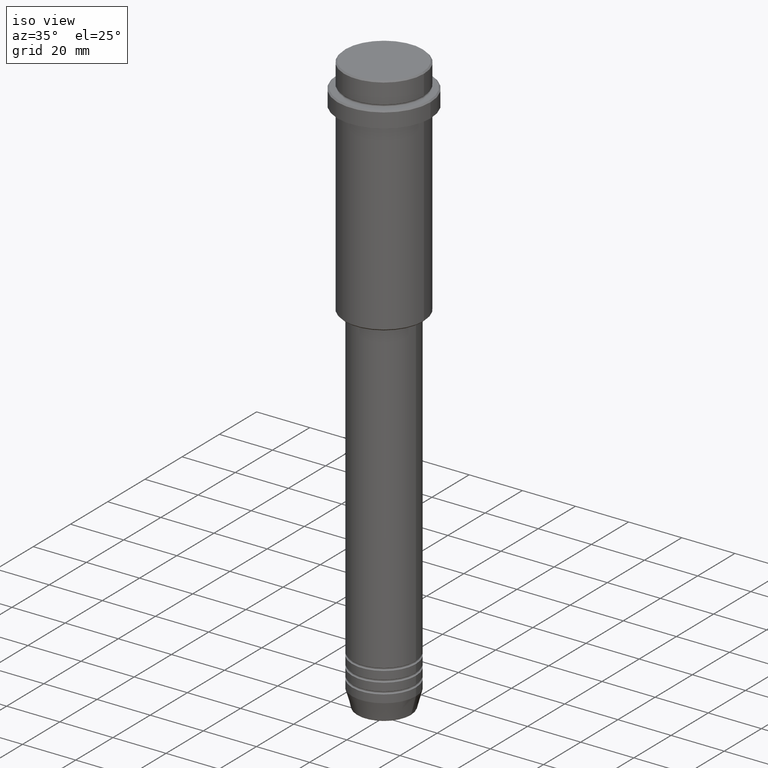
[diagram: clean part render]
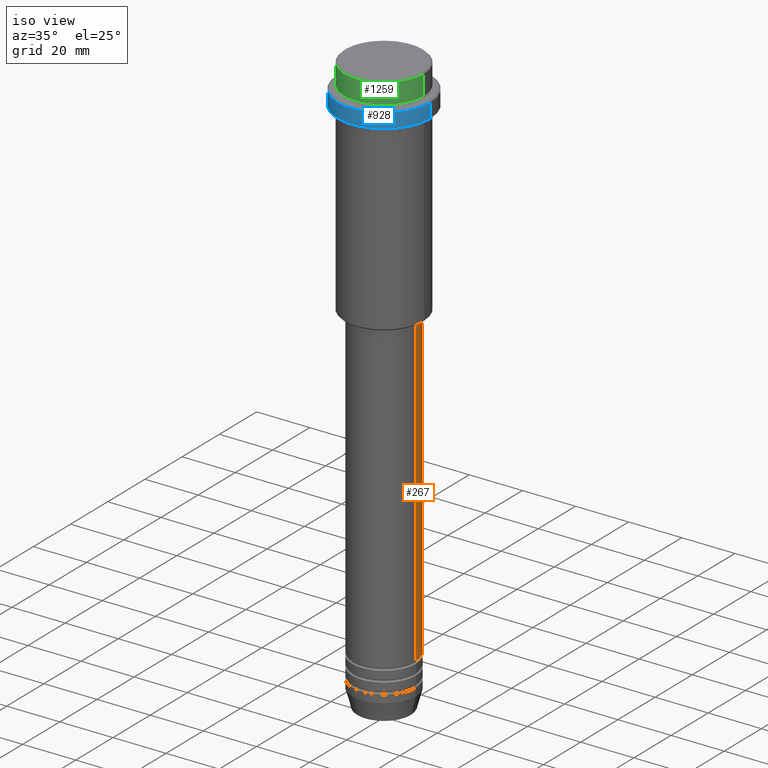
[diagram: same view with three faces highlighted in distinct colors, each labeled with its STEP entity id]
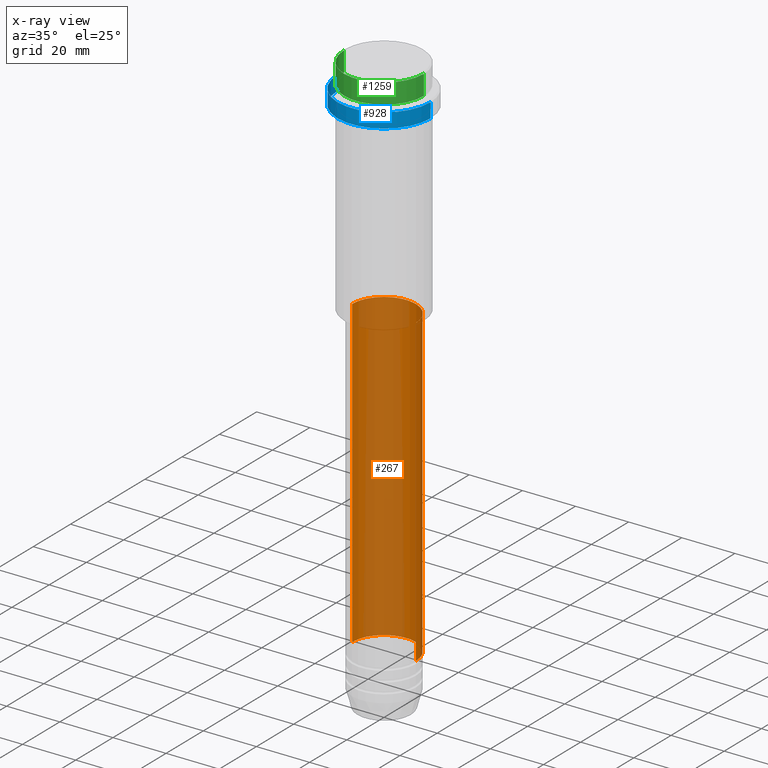
[diagram: x-ray of the same camera — body ghosted, the three highlighted faces saturated]
A machine part, iso view with three faces highlighted in distinct colors.
The next image is the same camera in x-ray (body ghosted, the three faces saturated) — at least one of them is partly hidden behind the body in this view.
Their STEP definitions:

[orange] entity #267 — the highlighted cylindrical surface (partial cylindrical patch) has radius 12 mm, axis along (-0, -0, 1).
#66 = CARTESIAN_POINT ( 'NONE',  ( -12.00000000000000000, 1.469576158976823947E-15, 0.000000000000000000 ) ) ;
#145 = VERTEX_POINT ( 'NONE', #497 ) ;
#205 = EDGE_CURVE ( 'NONE', #320, #145, #401, .T. ) ;
#221 = ORIENTED_EDGE ( 'NONE', *, *, #205, .T. ) ;
#267 = ADVANCED_FACE ( 'NONE', ( #1157 ), #1065, .T. ) ;
#273 = EDGE_CURVE ( 'NONE', #988, #320, #731, .T. ) ;
#291 = DIRECTION ( 'NONE',  ( -0.000000000000000000, -0.000000000000000000, 1.000000000000000000 ) ) ;
#320 = VERTEX_POINT ( 'NONE', #645 ) ;
#401 = LINE ( 'NONE', #66, #899 ) ;
#442 = CARTESIAN_POINT ( 'NONE',  ( 0.000000000000000000, 0.000000000000000000, -200.9999999999999147 ) ) ;
#471 = CARTESIAN_POINT ( 'NONE',  ( 0.000000000000000000, 0.000000000000000000, -86.00000000000001421 ) ) ;
#495 = CARTESIAN_POINT ( 'NONE',  ( 12.00000000000000000, 0.000000000000000000, -200.9999999999999147 ) ) ;
#497 = CARTESIAN_POINT ( 'NONE',  ( -11.99999999999999822, 1.469576158976823750E-15, -86.00000000000001421 ) ) ;
#639 = AXIS2_PLACEMENT_3D ( 'NONE', #442, #1000, #771 ) ;
#645 = CARTESIAN_POINT ( 'NONE',  ( -12.00000000000000000, 1.469576158976823947E-15, -200.9999999999999147 ) ) ;
#673 = ORIENTED_EDGE ( 'NONE', *, *, #943, .F. ) ;
#703 = VERTEX_POINT ( 'NONE', #1270 ) ;
#708 = DIRECTION ( 'NONE',  ( -0.000000000000000000, -0.000000000000000000, 1.000000000000000000 ) ) ;
#715 = ORIENTED_EDGE ( 'NONE', *, *, #1266, .F. ) ;
#731 = CIRCLE ( 'NONE', #639, 12.00000000000000000 ) ;
#768 = DIRECTION ( 'NONE',  ( -0.000000000000000000, -0.000000000000000000, 1.000000000000000000 ) ) ;
#771 = DIRECTION ( 'NONE',  ( 1.000000000000000000, 0.000000000000000000, 0.000000000000000000 ) ) ;
#899 = VECTOR ( 'NONE', #291, 1000.000000000000000 ) ;
#932 = ORIENTED_EDGE ( 'NONE', *, *, #273, .T. ) ;
#943 = EDGE_CURVE ( 'NONE', #703, #145, #1219, .T. ) ;
#986 = LINE ( 'NONE', #1417, #1125 ) ;
#988 = VERTEX_POINT ( 'NONE', #495 ) ;
#1000 = DIRECTION ( 'NONE',  ( -0.000000000000000000, -0.000000000000000000, 1.000000000000000000 ) ) ;
#1023 = EDGE_LOOP ( 'NONE', ( #932, #221, #673, #715 ) ) ;
#1065 = CYLINDRICAL_SURFACE ( 'NONE', #1164, 12.00000000000000000 ) ;
#1109 = DIRECTION ( 'NONE',  ( -0.000000000000000000, -0.000000000000000000, 1.000000000000000000 ) ) ;
#1124 = DIRECTION ( 'NONE',  ( 1.000000000000000000, 0.000000000000000000, 0.000000000000000000 ) ) ;
#1125 = VECTOR ( 'NONE', #768, 1000.000000000000000 ) ;
#1151 = DIRECTION ( 'NONE',  ( 1.000000000000000000, 0.000000000000000000, 0.000000000000000000 ) ) ;
#1157 = FACE_OUTER_BOUND ( 'NONE', #1023, .T. ) ;
#1164 = AXIS2_PLACEMENT_3D ( 'NONE', #1361, #708, #1151 ) ;
#1192 = AXIS2_PLACEMENT_3D ( 'NONE', #471, #1109, #1124 ) ;
#1219 = CIRCLE ( 'NONE', #1192, 11.99999999999999822 ) ;
#1266 = EDGE_CURVE ( 'NONE', #988, #703, #986, .T. ) ;
#1270 = CARTESIAN_POINT ( 'NONE',  ( 11.99999999999999822, 0.000000000000000000, -86.00000000000001421 ) ) ;
#1361 = CARTESIAN_POINT ( 'NONE',  ( 0.000000000000000000, 0.000000000000000000, 0.000000000000000000 ) ) ;
#1417 = CARTESIAN_POINT ( 'NONE',  ( 12.00000000000000000, 0.000000000000000000, 0.000000000000000000 ) ) ;

[blue] entity #928 — the highlighted cylindrical surface (partial cylindrical patch) has radius 17.5 mm, axis along (-0, -0, 1).
#27 = DIRECTION ( 'NONE',  ( -0.000000000000000000, -0.000000000000000000, 1.000000000000000000 ) ) ;
#50 = CARTESIAN_POINT ( 'NONE',  ( 0.000000000000000000, 0.000000000000000000, 0.000000000000000000 ) ) ;
#91 = CARTESIAN_POINT ( 'NONE',  ( -17.50000000000000000, 2.143131898507868248E-15, -9.500000000000028422 ) ) ;
#108 = EDGE_CURVE ( 'NONE', #1074, #248, #594, .T. ) ;
#131 = FACE_OUTER_BOUND ( 'NONE', #1158, .T. ) ;
#135 = ORIENTED_EDGE ( 'NONE', *, *, #624, .T. ) ;
#153 = VECTOR ( 'NONE', #355, 1000.000000000000000 ) ;
#155 = DIRECTION ( 'NONE',  ( 1.000000000000000000, 0.000000000000000000, 0.000000000000000000 ) ) ;
#171 = CIRCLE ( 'NONE', #1244, 17.50000000000000000 ) ;
#172 = LINE ( 'NONE', #602, #439 ) ;
#179 = CARTESIAN_POINT ( 'NONE',  ( -17.50000000000000000, 2.143131898507868248E-15, -15.00000000000000178 ) ) ;
#242 = ORIENTED_EDGE ( 'NONE', *, *, #108, .F. ) ;
#248 = VERTEX_POINT ( 'NONE', #91 ) ;
#315 = ORIENTED_EDGE ( 'NONE', *, *, #972, .T. ) ;
#341 = DIRECTION ( 'NONE',  ( 1.000000000000000000, 0.000000000000000000, 0.000000000000000000 ) ) ;
#355 = DIRECTION ( 'NONE',  ( -0.000000000000000000, -0.000000000000000000, 1.000000000000000000 ) ) ;
#439 = VECTOR ( 'NONE', #837, 1000.000000000000000 ) ;
#581 = CARTESIAN_POINT ( 'NONE',  ( 0.000000000000000000, 0.000000000000000000, -15.00000000000000178 ) ) ;
#582 = CYLINDRICAL_SURFACE ( 'NONE', #1099, 17.50000000000000000 ) ;
#594 = LINE ( 'NONE', #1332, #153 ) ;
#602 = CARTESIAN_POINT ( 'NONE',  ( 17.50000000000000000, 0.000000000000000000, 0.000000000000000000 ) ) ;
#624 = EDGE_CURVE ( 'NONE', #823, #1319, #172, .T. ) ;
#778 = ORIENTED_EDGE ( 'NONE', *, *, #1333, .T. ) ;
#823 = VERTEX_POINT ( 'NONE', #1303 ) ;
#837 = DIRECTION ( 'NONE',  ( -0.000000000000000000, -0.000000000000000000, 1.000000000000000000 ) ) ;
#928 = ADVANCED_FACE ( 'NONE', ( #131 ), #582, .T. ) ;
#933 = DIRECTION ( 'NONE',  ( 0.000000000000000000, 0.000000000000000000, -1.000000000000000000 ) ) ;
#945 = AXIS2_PLACEMENT_3D ( 'NONE', #1343, #933, #1382 ) ;
#972 = EDGE_CURVE ( 'NONE', #1319, #248, #996, .T. ) ;
#996 = CIRCLE ( 'NONE', #945, 17.50000000000000000 ) ;
#1074 = VERTEX_POINT ( 'NONE', #179 ) ;
#1099 = AXIS2_PLACEMENT_3D ( 'NONE', #50, #27, #155 ) ;
#1114 = DIRECTION ( 'NONE',  ( -0.000000000000000000, -0.000000000000000000, 1.000000000000000000 ) ) ;
#1130 = CARTESIAN_POINT ( 'NONE',  ( 17.50000000000000000, 0.000000000000000000, -9.500000000000028422 ) ) ;
#1158 = EDGE_LOOP ( 'NONE', ( #242, #778, #135, #315 ) ) ;
#1244 = AXIS2_PLACEMENT_3D ( 'NONE', #581, #1114, #341 ) ;
#1303 = CARTESIAN_POINT ( 'NONE',  ( 17.50000000000000000, 0.000000000000000000, -15.00000000000000178 ) ) ;
#1319 = VERTEX_POINT ( 'NONE', #1130 ) ;
#1332 = CARTESIAN_POINT ( 'NONE',  ( -17.50000000000000000, 2.143131898507868248E-15, 0.000000000000000000 ) ) ;
#1333 = EDGE_CURVE ( 'NONE', #1074, #823, #171, .T. ) ;
#1343 = CARTESIAN_POINT ( 'NONE',  ( 0.000000000000000000, 0.000000000000000000, -9.500000000000028422 ) ) ;
#1382 = DIRECTION ( 'NONE',  ( 1.000000000000000000, 0.000000000000000000, 0.000000000000000000 ) ) ;

[green] entity #1259 — the highlighted cylindrical surface (partial cylindrical patch) has radius 15 mm, axis along (-0, -0, 1).
#23 = ORIENTED_EDGE ( 'NONE', *, *, #851, .T. ) ;
#102 = ORIENTED_EDGE ( 'NONE', *, *, #141, .F. ) ;
#138 = CARTESIAN_POINT ( 'NONE',  ( 15.00000000000000000, 0.000000000000000000, 0.000000000000000000 ) ) ;
#141 = EDGE_CURVE ( 'NONE', #435, #513, #730, .T. ) ;
#159 = LINE ( 'NONE', #138, #553 ) ;
#190 = DIRECTION ( 'NONE',  ( -0.000000000000000000, -0.000000000000000000, 1.000000000000000000 ) ) ;
#244 = CARTESIAN_POINT ( 'NONE',  ( -15.00000000000000000, 1.836970198721029589E-15, -7.999999999999998224 ) ) ;
#321 = DIRECTION ( 'NONE',  ( -0.000000000000000000, -0.000000000000000000, 1.000000000000000000 ) ) ;
#385 = DIRECTION ( 'NONE',  ( 1.000000000000000000, 0.000000000000000000, 0.000000000000000000 ) ) ;
#423 = CARTESIAN_POINT ( 'NONE',  ( 0.000000000000000000, 0.000000000000000000, 0.000000000000000000 ) ) ;
#435 = VERTEX_POINT ( 'NONE', #244 ) ;
#485 = AXIS2_PLACEMENT_3D ( 'NONE', #1181, #651, #1086 ) ;
#513 = VERTEX_POINT ( 'NONE', #575 ) ;
#553 = VECTOR ( 'NONE', #897, 1000.000000000000000 ) ;
#561 = VERTEX_POINT ( 'NONE', #1223 ) ;
#575 = CARTESIAN_POINT ( 'NONE',  ( -15.00000000000000000, 1.836970198721029589E-15, -0.5000000000000108802 ) ) ;
#580 = AXIS2_PLACEMENT_3D ( 'NONE', #423, #321, #648 ) ;
#586 = EDGE_CURVE ( 'NONE', #435, #561, #732, .T. ) ;
#592 = DIRECTION ( 'NONE',  ( -0.000000000000000000, -0.000000000000000000, 1.000000000000000000 ) ) ;
#611 = ORIENTED_EDGE ( 'NONE', *, *, #949, .T. ) ;
#648 = DIRECTION ( 'NONE',  ( 1.000000000000000000, 0.000000000000000000, 0.000000000000000000 ) ) ;
#651 = DIRECTION ( 'NONE',  ( 0.000000000000000000, 0.000000000000000000, -1.000000000000000000 ) ) ;
#730 = LINE ( 'NONE', #821, #870 ) ;
#732 = CIRCLE ( 'NONE', #1054, 15.00000000000000000 ) ;
#763 = EDGE_LOOP ( 'NONE', ( #102, #1392, #611, #23 ) ) ;
#819 = CARTESIAN_POINT ( 'NONE',  ( 0.000000000000000000, 0.000000000000000000, -7.999999999999998224 ) ) ;
#821 = CARTESIAN_POINT ( 'NONE',  ( -15.00000000000000000, 1.836970198721029589E-15, 0.000000000000000000 ) ) ;
#851 = EDGE_CURVE ( 'NONE', #1416, #513, #1146, .T. ) ;
#870 = VECTOR ( 'NONE', #190, 1000.000000000000000 ) ;
#897 = DIRECTION ( 'NONE',  ( -0.000000000000000000, -0.000000000000000000, 1.000000000000000000 ) ) ;
#949 = EDGE_CURVE ( 'NONE', #561, #1416, #159, .T. ) ;
#1054 = AXIS2_PLACEMENT_3D ( 'NONE', #819, #592, #385 ) ;
#1086 = DIRECTION ( 'NONE',  ( 1.000000000000000000, 0.000000000000000000, 0.000000000000000000 ) ) ;
#1098 = CARTESIAN_POINT ( 'NONE',  ( 15.00000000000000000, 0.000000000000000000, -0.5000000000000108802 ) ) ;
#1146 = CIRCLE ( 'NONE', #485, 15.00000000000000000 ) ;
#1181 = CARTESIAN_POINT ( 'NONE',  ( 0.000000000000000000, 0.000000000000000000, -0.5000000000000108802 ) ) ;
#1202 = FACE_OUTER_BOUND ( 'NONE', #763, .T. ) ;
#1223 = CARTESIAN_POINT ( 'NONE',  ( 15.00000000000000000, 0.000000000000000000, -7.999999999999998224 ) ) ;
#1259 = ADVANCED_FACE ( 'NONE', ( #1202 ), #1403, .T. ) ;
#1392 = ORIENTED_EDGE ( 'NONE', *, *, #586, .T. ) ;
#1403 = CYLINDRICAL_SURFACE ( 'NONE', #580, 15.00000000000000000 ) ;
#1416 = VERTEX_POINT ( 'NONE', #1098 ) ;